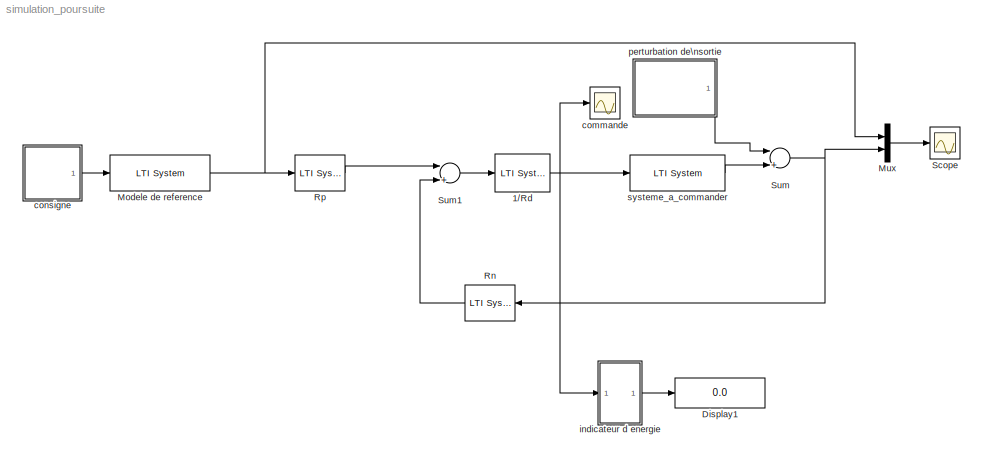
MODEL simulation_poursuite
KIND model
BLOCK [Reference] 1//Rd  REF=cstblocks/LTI System
  FunctionWithSeparateData = off
  IC = []
  Ports = [1, 1]
  RTWMemSecDataConstants = Inherit from model
  RTWMemSecDataInternal = Inherit from model
  RTWMemSecDataParameters = Inherit from model
  RTWMemSecFuncExecute = Inherit from model
  RTWMemSecFuncInitTerm = Inherit from model
  ShowPortLabels = FromPortIcon
  SourceBlock = cstblocks/LTI System
  SourceType = LTI Block
  SystemSampleTime = -1
  sys = 1/Rd_tf
BLOCK [Display] Display1
  Decimation = 1
  Lockdown = off
  Ports = [1]
BLOCK [Reference] Modele de reference  REF=cstblocks/LTI System
  FunctionWithSeparateData = off
  IC = []
  Ports = [1, 1]
  RTWMemSecDataConstants = Inherit from model
  RTWMemSecDataInternal = Inherit from model
  RTWMemSecDataParameters = Inherit from model
  RTWMemSecFuncExecute = Inherit from model
  RTWMemSecFuncInitTerm = Inherit from model
  ShowPortLabels = FromPortIcon
  SourceBlock = cstblocks/LTI System
  SourceType = LTI Block
  SystemSampleTime = -1
  sys = modele_reference
BLOCK [Mux] Mux
  DisplayOption = bar
  Inputs = 2
  Ports = [2, 1]
BLOCK [Reference] Rn  REF=cstblocks/LTI System
  FunctionWithSeparateData = off
  IC = []
  Ports = [1, 1]
  RTWMemSecDataConstants = Inherit from model
  RTWMemSecDataInternal = Inherit from model
  RTWMemSecDataParameters = Inherit from model
  RTWMemSecFuncExecute = Inherit from model
  RTWMemSecFuncInitTerm = Inherit from model
  ShowPortLabels = FromPortIcon
  SourceBlock = cstblocks/LTI System
  SourceType = LTI Block
  SystemSampleTime = -1
  sys = Rn_tf
BLOCK [Reference] Rp  REF=cstblocks/LTI System
  FunctionWithSeparateData = off
  IC = []
  Ports = [1, 1]
  RTWMemSecDataConstants = Inherit from model
  RTWMemSecDataInternal = Inherit from model
  RTWMemSecDataParameters = Inherit from model
  RTWMemSecFuncExecute = Inherit from model
  RTWMemSecFuncInitTerm = Inherit from model
  ShowPortLabels = FromPortIcon
  SourceBlock = cstblocks/LTI System
  SourceType = LTI Block
  SystemSampleTime = -1
  sys = Rp_tf
BLOCK [Scope] Scope
  DataFormat = StructureWithTime
  Floating = off
  MaxDataPoints = 50000
  NumInputPorts = 1
  Ports = [1]
  SampleTime = 0
  YMax = 1
  YMin = -1
BLOCK [Sum] Sum
  CollapseMode = All dimensions
  InputSameDT = off
  Inputs = |++
  OutDataType = sfix(16)
  OutDataTypeMode = Inherit via internal rule
  OutScaling = 2^0
  Ports = [2, 1]
  SaturateOnIntegerOverflow = off
BLOCK [Sum] Sum1
  CollapseMode = All dimensions
  InputSameDT = off
  Inputs = |+-
  OutDataType = sfix(16)
  OutDataTypeMode = Inherit via internal rule
  OutScaling = 2^0
  Ports = [2, 1]
  SaturateOnIntegerOverflow = off
BLOCK [Scope] commande
  DataFormat = StructureWithTime
  Floating = off
  MaxDataPoints = 50000
  NumInputPorts = 1
  Ports = [1]
  SampleTime = 0
  SaveName = ScopeData1
  YMax = 300
  YMin = -300
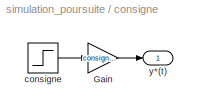
BLOCK [SubSystem] consigne
  FunctionWithSeparateData = off
  MinAlgLoopOccurrences = off
  Ports = [0, 1]
  RTWSystemCode = Auto
BLOCK [Gain] consigne/Gain
  Gain = consigne_bf
  OutDataType = sfix(16)
  OutDataTypeMode = Inherit via internal rule
  OutScaling = 2^0
  ParameterDataType = sfix(16)
  ParameterDataTypeMode = Inherit via internal rule
  ParameterScaling = 2^0
  SaturateOnIntegerOverflow = off
BLOCK [Step] consigne/consigne
  SampleTime = 0
  Time = 0
BLOCK [Outport] consigne/y*(t)
  IconDisplay = Port number
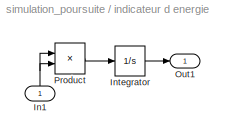
BLOCK [SubSystem] indicateur d energie
  FunctionWithSeparateData = off
  MinAlgLoopOccurrences = off
  Ports = [1, 1]
  RTWSystemCode = Auto
BLOCK [Inport] indicateur d energie/In1
  IconDisplay = Port number
BLOCK [Integrator] indicateur d energie/Integrator
  Ports = [1, 1]
BLOCK [Outport] indicateur d energie/Out1
  IconDisplay = Port number
BLOCK [Product] indicateur d energie/Product
  CollapseMode = All dimensions
  InputSameDT = off
  OutDataType = sfix(16)
  OutDataTypeMode = Inherit via internal rule
  OutScaling = 2^0
  Ports = [2, 1]
  SaturateOnIntegerOverflow = off
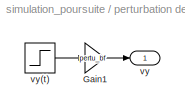
BLOCK [SubSystem] perturbation de\nsortie
  FunctionWithSeparateData = off
  MinAlgLoopOccurrences = off
  Ports = [0, 1]
  RTWSystemCode = Auto
BLOCK [Gain] perturbation de\nsortie/Gain1
  Gain = pertu_bf
  OutDataType = sfix(16)
  OutDataTypeMode = Inherit via internal rule
  OutScaling = 2^0
  ParameterDataType = sfix(16)
  ParameterDataTypeMode = Inherit via internal rule
  ParameterScaling = 2^0
  SaturateOnIntegerOverflow = off
BLOCK [Outport] perturbation de\nsortie/vy
  IconDisplay = Port number
BLOCK [Step] perturbation de\nsortie/vy(t)
  SampleTime = 0
  Time = 5
BLOCK [Reference] systeme_a_commander  REF=cstblocks/LTI System
  FunctionWithSeparateData = off
  IC = []
  Ports = [1, 1]
  RTWMemSecDataConstants = Inherit from model
  RTWMemSecDataInternal = Inherit from model
  RTWMemSecDataParameters = Inherit from model
  RTWMemSecFuncExecute = Inherit from model
  RTWMemSecFuncInitTerm = Inherit from model
  ShowPortLabels = FromPortIcon
  SourceBlock = cstblocks/LTI System
  SourceType = LTI Block
  SystemSampleTime = -1
  sys = G1
NET 1//Rd:1 -> commande:1, indicateur d energie:1, systeme_a_commander:1
NET Modele de reference:1 -> Mux:1, Rp:1
LINE Mux:1 -> Scope:1
LINE Rn:1 -> Sum1:2
LINE Rp:1 -> Sum1:1
LINE Sum1:1 -> 1//Rd:1
NET Sum:1 -> Mux:2, Rn:1
LINE consigne/Gain:1 -> consigne/y*(t):1
LINE consigne/consigne:1 -> consigne/Gain:1
LINE consigne:1 -> Modele de reference:1
NET indicateur d energie/In1:1 -> indicateur d energie/Product:1, indicateur d energie/Product:2
LINE indicateur d energie/Integrator:1 -> indicateur d energie/Out1:1
LINE indicateur d energie/Product:1 -> indicateur d energie/Integrator:1
LINE indicateur d energie:1 -> Display1:1
LINE perturbation de\nsortie/Gain1:1 -> perturbation de\nsortie/vy:1
LINE perturbation de\nsortie/vy(t):1 -> perturbation de\nsortie/Gain1:1
LINE perturbation de\nsortie:1 -> Sum:1
LINE systeme_a_commander:1 -> Sum:2
note: NET lines group one-source signal fan-out (src -> all destinations, sorted); 1:1 wires keep LINE
